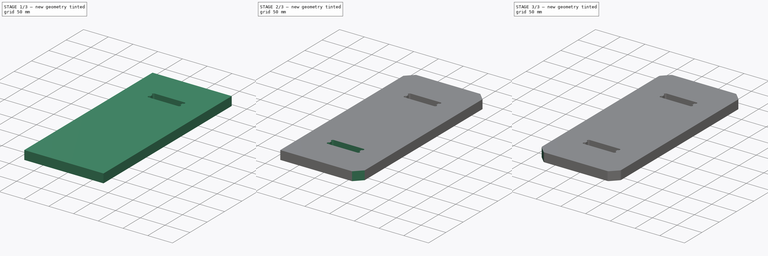
[diagram: build sequence overview — one tinted view per stage of 3, left to right]
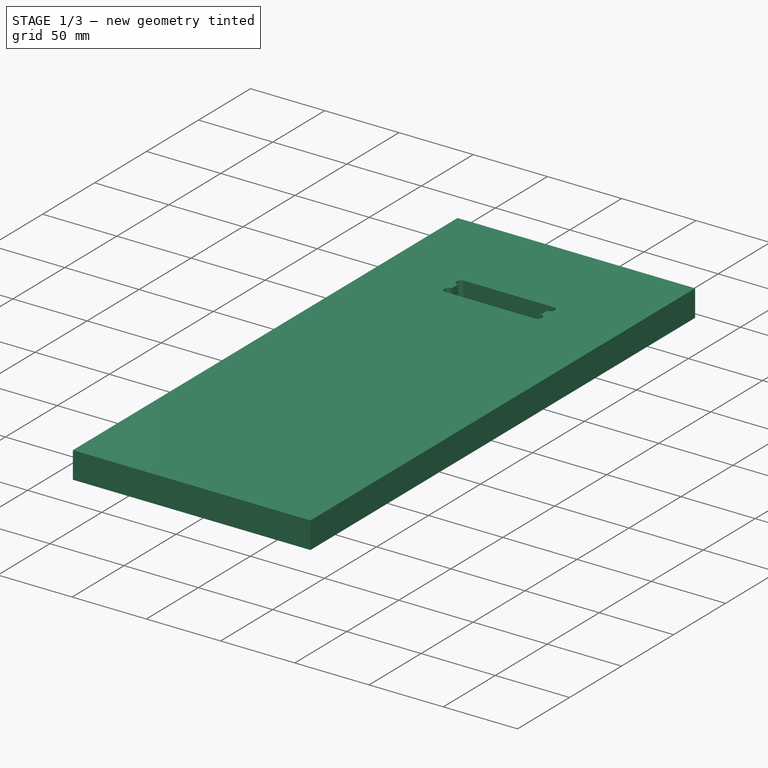
[diagram: stage 1 of 3 — iso view after this stage's code; geometry added in this stage tinted green]
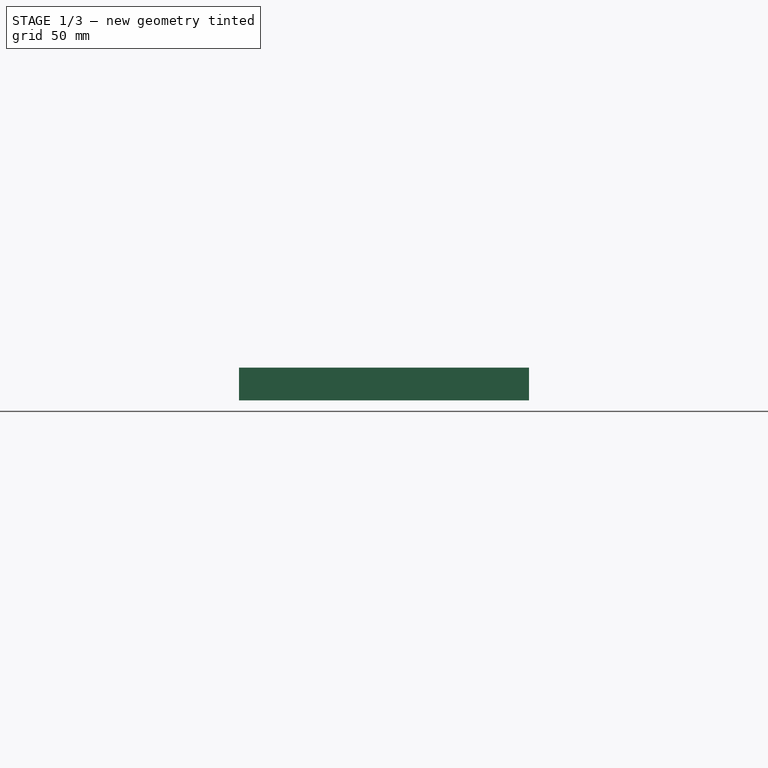
[diagram: stage 1 of 3 — front view after this stage's code; geometry added in this stage tinted green]
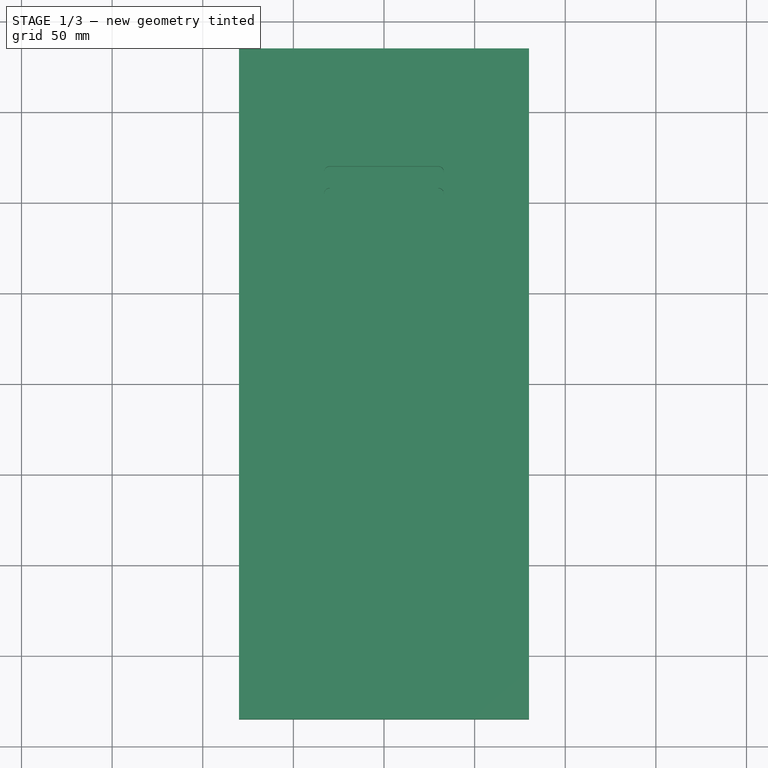
[diagram: stage 1 of 3 — top view after this stage's code; geometry added in this stage tinted green]
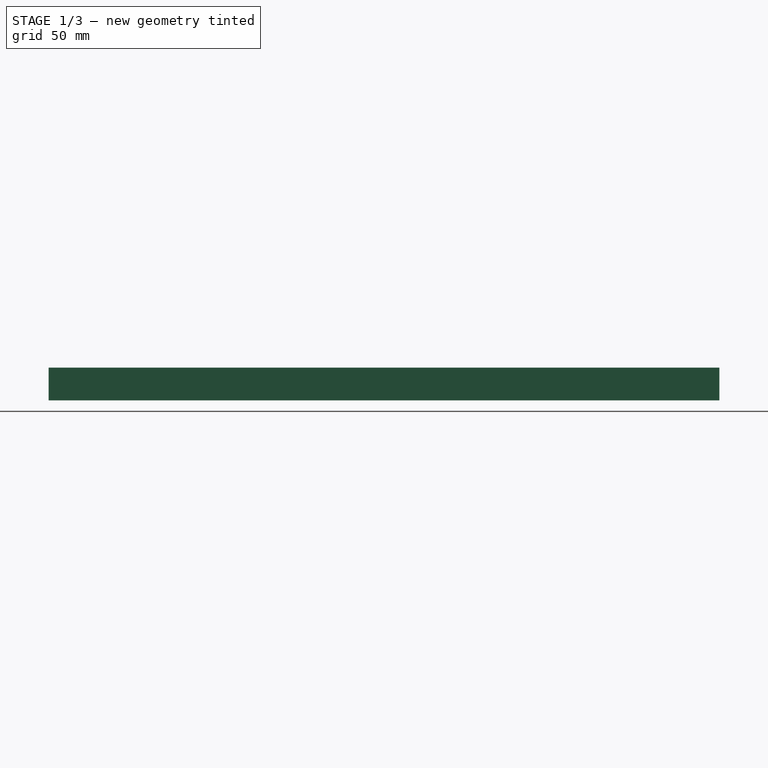
[diagram: stage 1 of 3 — right view after this stage's code; geometry added in this stage tinted green]
FCSTD DOCUMENT  (FreeCAD 0.15R4671 (Git))
Label: CenterPart
License: All rights reserved
LicenseURL: http://en.wikipedia.org/wiki/All_rights_reserved
objects: PartDesign::Chamfer×3, Sketcher::SketchObject×2, PartDesign::Pad×1, PartDesign::Pocket×1, PartDesign::Mirrored×1, PartDesign::Fillet×1
note: 11 computed .brp shape members not serialized (recipe doc carries the construction recipe); baked Part::Feature solids carry a one-line shape summary decoded from their .brp

FEATURE [Sketcher::SketchObject] Sketch
  sketch-geometry (4):
    g0: LineSegment StartX=-80 StartY=185 StartZ=0 EndX=80 EndY=185 EndZ=0
    g1: LineSegment StartX=80 StartY=185 StartZ=0 EndX=80 EndY=-185 EndZ=0
    g2: LineSegment StartX=80 StartY=-185 StartZ=0 EndX=-80 EndY=-185 EndZ=0
    g3: LineSegment StartX=-80 StartY=-185 StartZ=0 EndX=-80 EndY=185 EndZ=0
  constraints (11):
    c: Coincident(g0,g1)
    c: Coincident(g1,g2)
    c: Coincident(g2,g3)
    c: Coincident(g3,g0)
    c: Horizontal(g0)
    c: Horizontal(g2)
    c: Vertical(g1)
    c: Vertical(g3)
    c: Distance(g3) = 370  'Length'
    c: Distance(g0) = 160  'Width'
    c: Symmetric(g0,g1,g-1)
FEATURE [PartDesign::Pad] Pad
  Length = 18
  Length2 = 100
  Sketch = -> Sketch
  Type = 0
FEATURE [Sketcher::SketchObject] Sketch001
  ExternalGeometry = -> [Pad]
  Placement = pos=(0,0,18) rot=(0,0,1;0rad)
  Support = -> Pad [Face6]
  sketch-geometry (8):
    g0: LineSegment StartX=-30 StartY=120 StartZ=0 EndX=30 EndY=120 EndZ=0
    g1: ArcOfCircle CenterX=30 CenterY=117 CenterZ=0 NormalX=0 NormalY=0 NormalZ=1 Radius=3 StartAngle=4.71239 EndAngle=7.85398
    g2: LineSegment StartX=30 StartY=114 StartZ=0 EndX=30 EndY=108 EndZ=0
    g3: ArcOfCircle CenterX=30 CenterY=105 CenterZ=0 NormalX=0 NormalY=0 NormalZ=1 Radius=3 StartAngle=4.71239 EndAngle=7.85398
    g4: LineSegment StartX=30 StartY=102 StartZ=0 EndX=-30 EndY=102 EndZ=0
    g5: ArcOfCircle CenterX=-30 CenterY=105 CenterZ=0 NormalX=0 NormalY=0 NormalZ=1 Radius=3 StartAngle=1.5708 EndAngle=4.71239
    g6: LineSegment StartX=-30 StartY=108 StartZ=0 EndX=-30 EndY=114 EndZ=0
    g7: ArcOfCircle CenterX=-30 CenterY=117 CenterZ=0 NormalX=0 NormalY=0 NormalZ=1 Radius=3 StartAngle=1.5708 EndAngle=4.71239
  constraints (23):
    c: Tangent(g0,g1) = 1.5708
    c: Perpendicular(g2,g3) = 4.71239
    c: Tangent(g3,g4) = 1.5708
    c: Tangent(g4,g5) = 1.5708
    c: Perpendicular(g6,g7) = 4.71239
    c: Coincident(g7,g0)
    c: Horizontal(g4)
    c: Horizontal(g0)
    c: Vertical(g6)
    c: Vertical(g2)
    c: Radius(g1) = 3
    c: Radius(g3) = 3
    c: Radius(g5) = 3
    c: Radius(g7) = 3
    c: DistanceX(g6,g0) = 0
    c: DistanceX(g6,g4) = 0
    c: DistanceY(g0,g4) = -18  'Thickness'
    c: DistanceX(g2,g0) = 0
    c: Coincident(g1,g2)
    c: Coincident(g5,g6)
    c: DistanceX(g3,g4) = -60
    c: DistanceY(g0,g-3) = 65
    c: Symmetric(g5,g2,g-2)
FEATURE [PartDesign::Pocket] Pocket
  Length = 12
  Sketch = -> Sketch001
  Type = 0
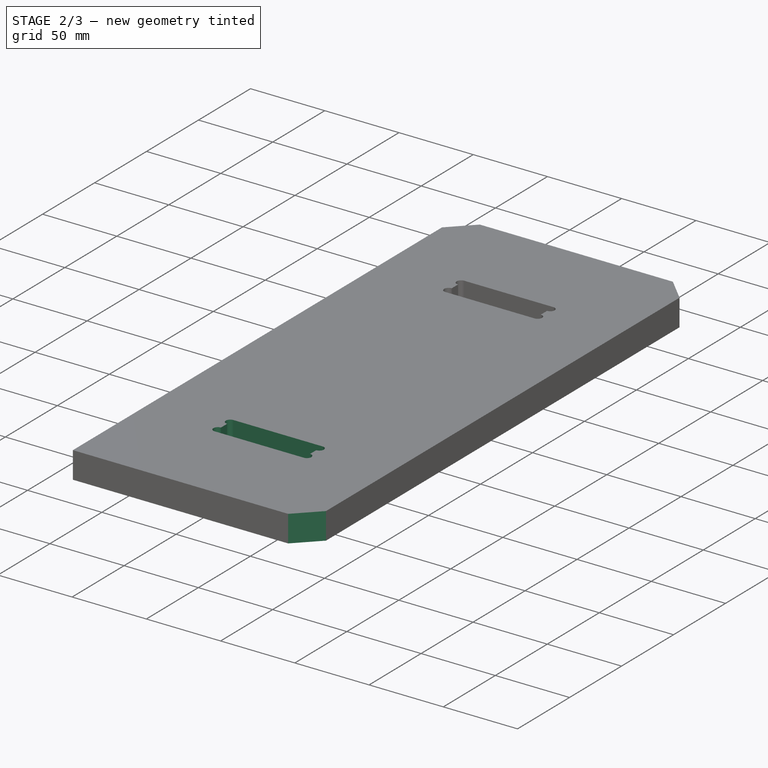
[diagram: stage 2 of 3 — iso view after this stage's code; geometry added in this stage tinted green]
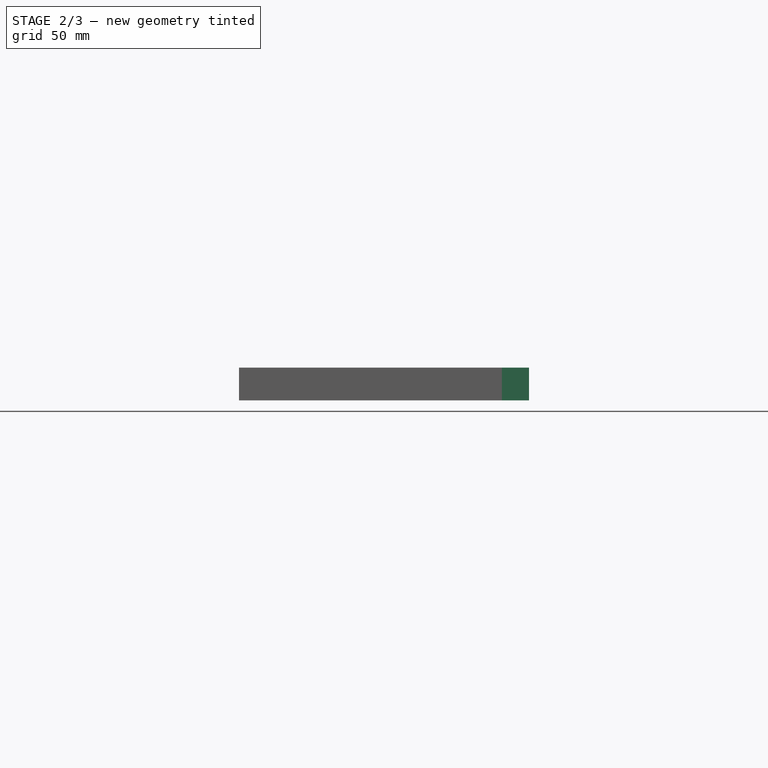
[diagram: stage 2 of 3 — front view after this stage's code; geometry added in this stage tinted green]
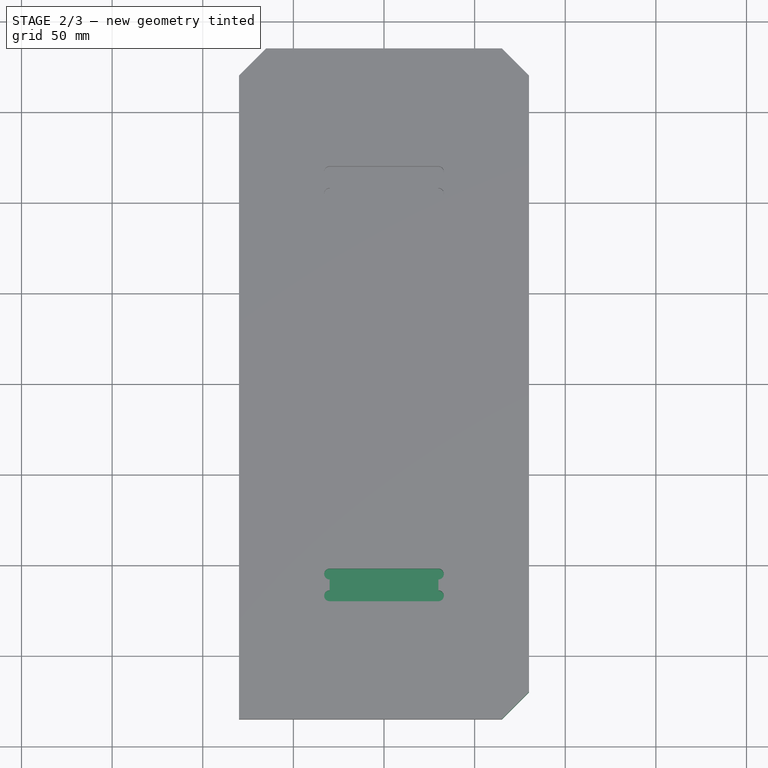
[diagram: stage 2 of 3 — top view after this stage's code; geometry added in this stage tinted green]
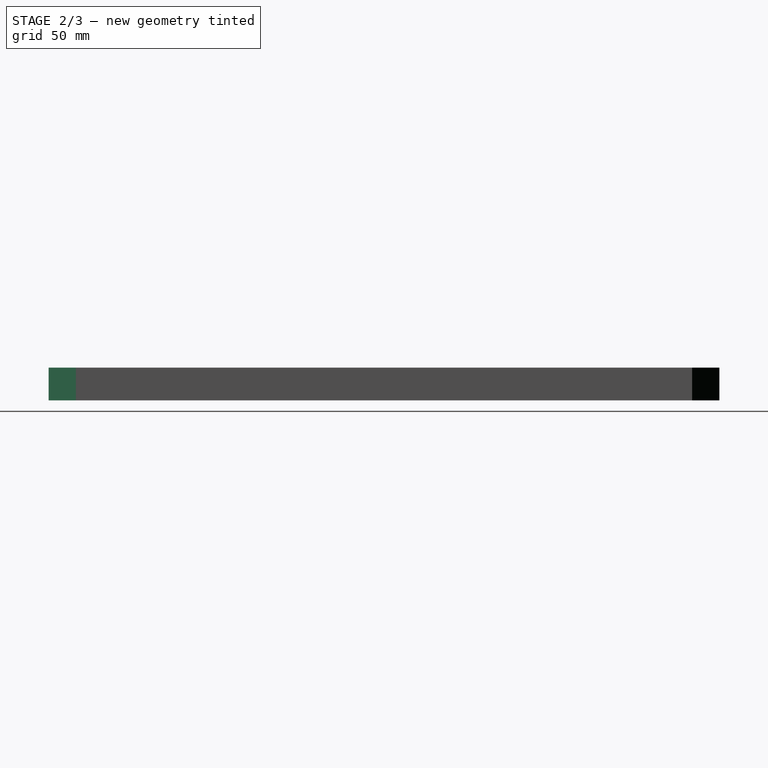
[diagram: stage 2 of 3 — right view after this stage's code; geometry added in this stage tinted green]
FEATURE [PartDesign::Mirrored] Mirrored
  MirrorPlane = -> Sketch001 [H_Axis]
  Originals = -> [Pocket]
FEATURE [PartDesign::Chamfer] Chamfer
  Base = -> Mirrored [Edge1]
  Size = 15
FEATURE [PartDesign::Chamfer] Chamfer001
  Base = -> Chamfer [Edge3,Edge11]
  Size = 15
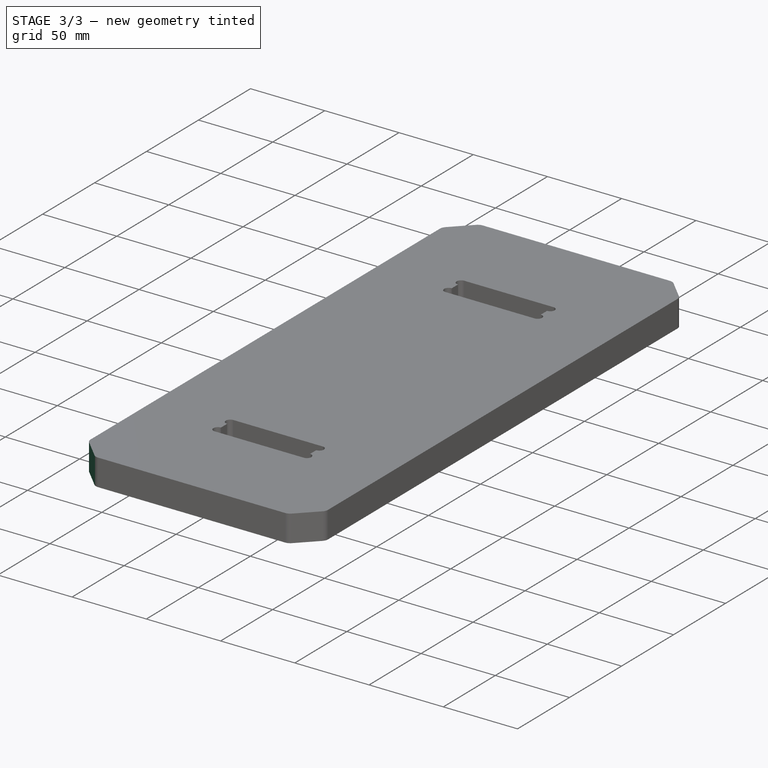
[diagram: stage 3 of 3 — iso view after this stage's code; geometry added in this stage tinted green]
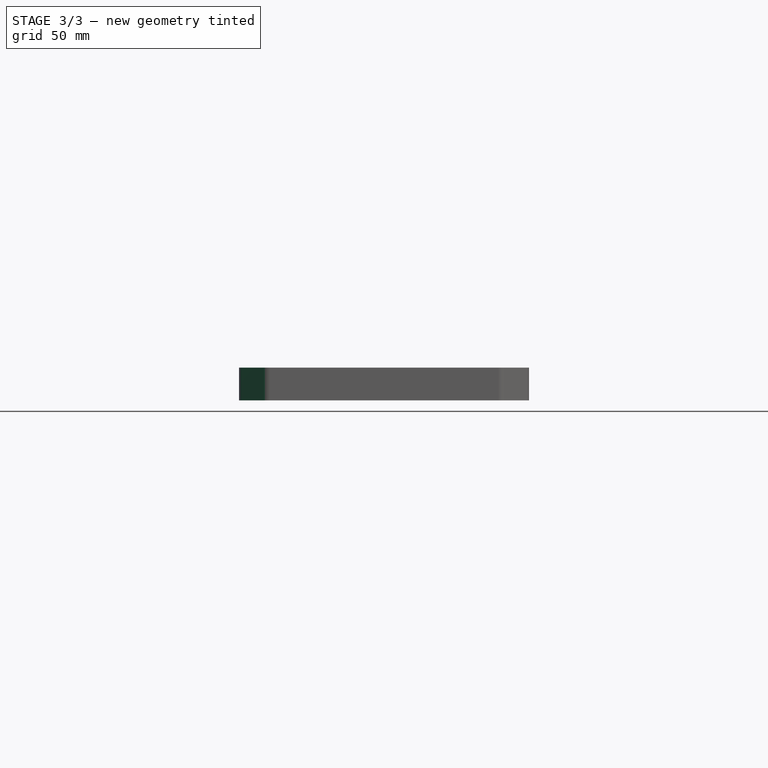
[diagram: stage 3 of 3 — front view after this stage's code; geometry added in this stage tinted green]
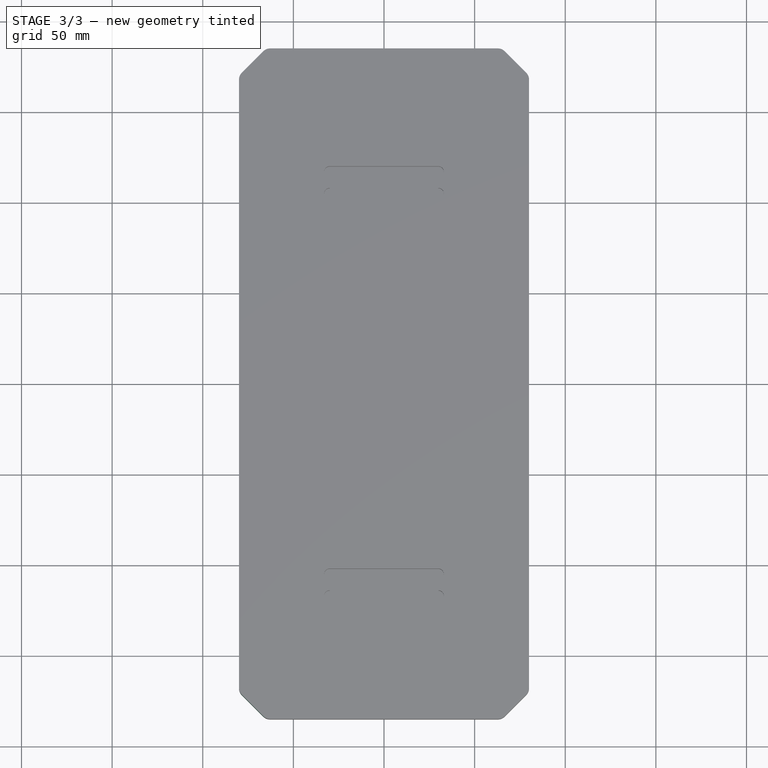
[diagram: stage 3 of 3 — top view after this stage's code; geometry added in this stage tinted green]
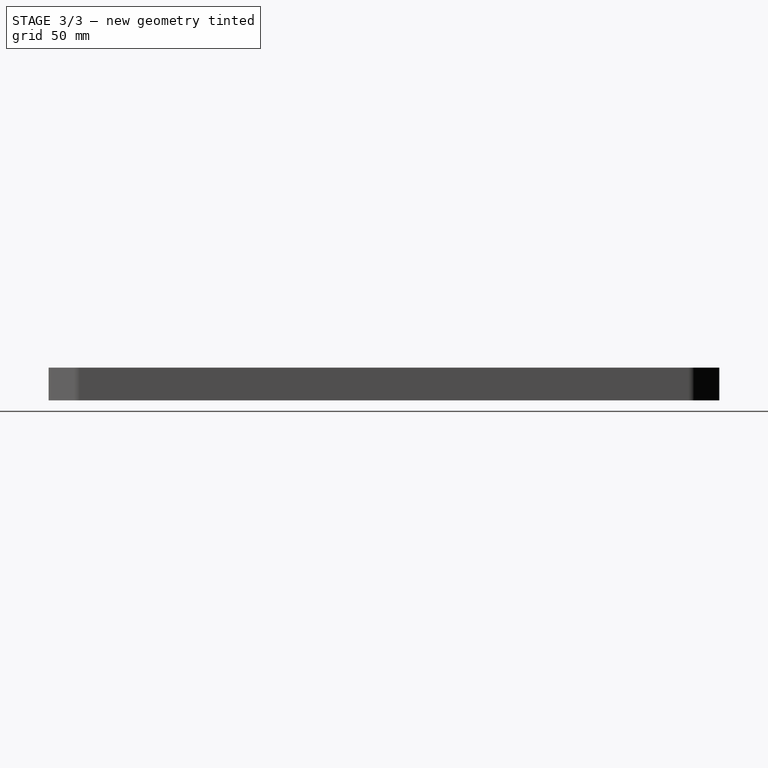
[diagram: stage 3 of 3 — right view after this stage's code; geometry added in this stage tinted green]
FEATURE [PartDesign::Chamfer] Chamfer002
  Base = -> Chamfer001 [Edge36]
  Size = 15
FEATURE [PartDesign::Fillet] Fillet
  Base = -> Chamfer002 [Edge9,Edge12,Edge10,Edge14,Edge18,Edge22,Edge20,Edge16]
  Radius = 5
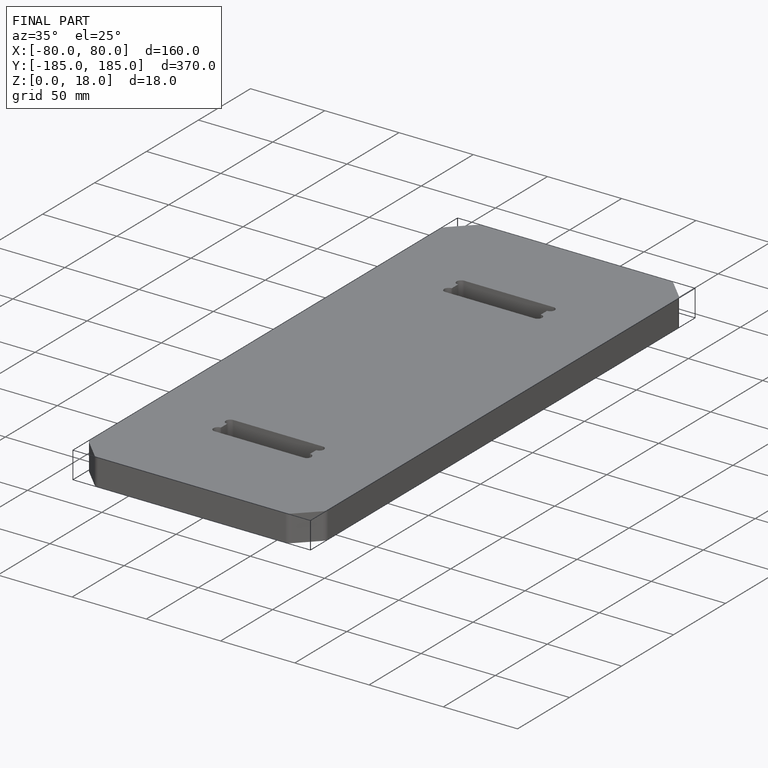
[diagram: finished part — iso view with bounding-box wireframe]
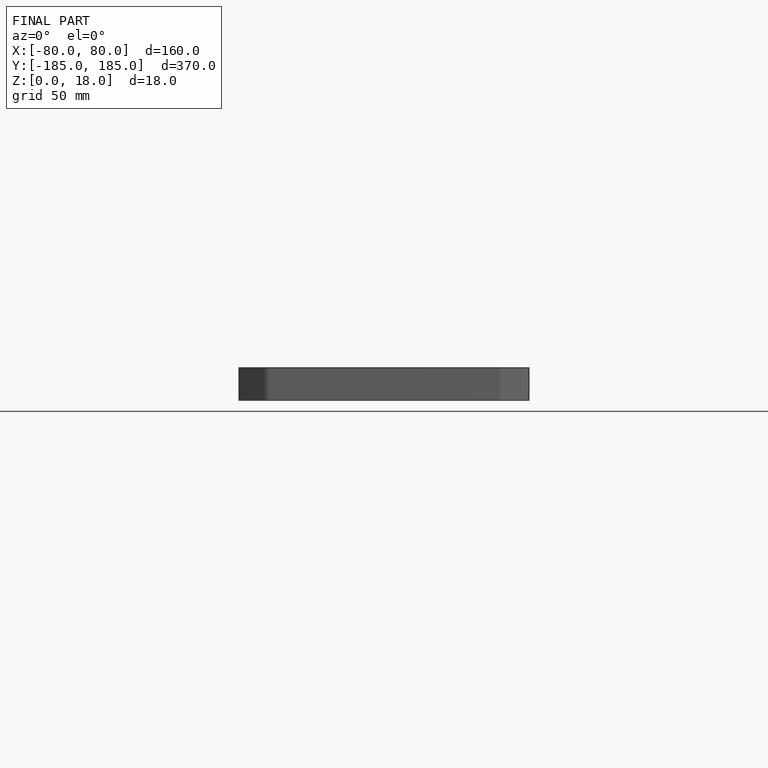
[diagram: finished part — front view with bounding-box wireframe]
